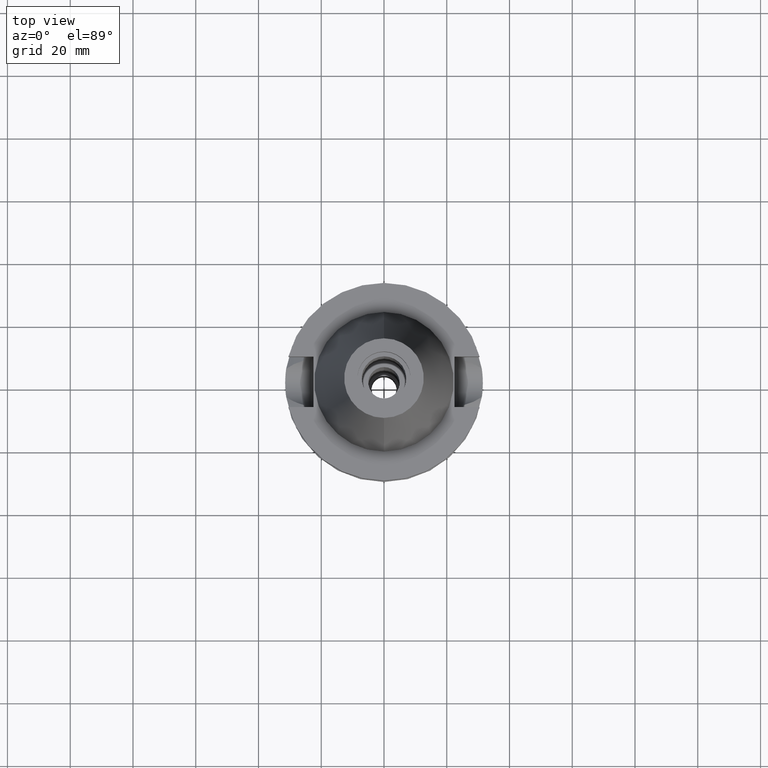
[diagram: clean part render]
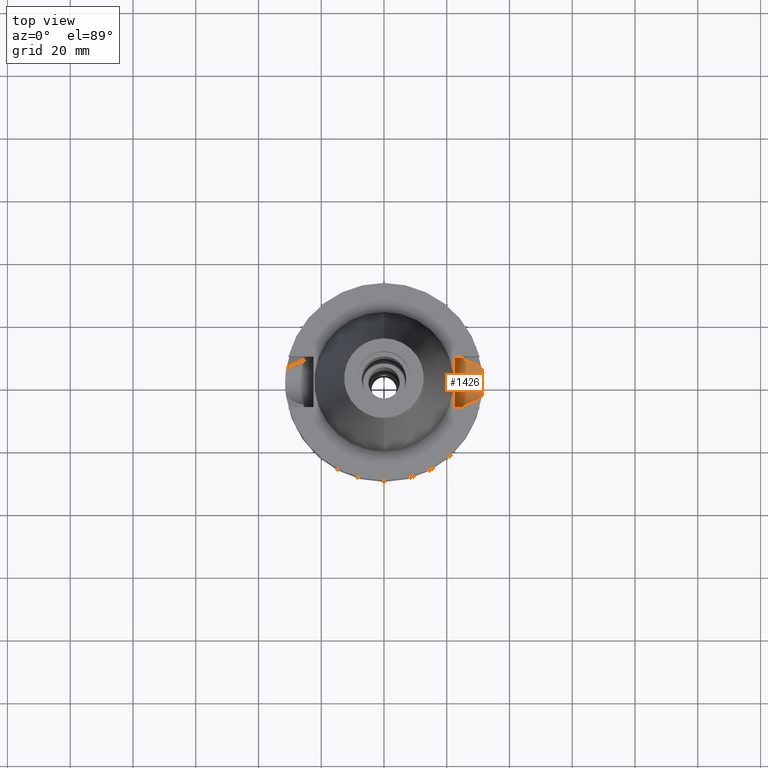
[diagram: same view with one face highlighted and labeled with its STEP entity id]
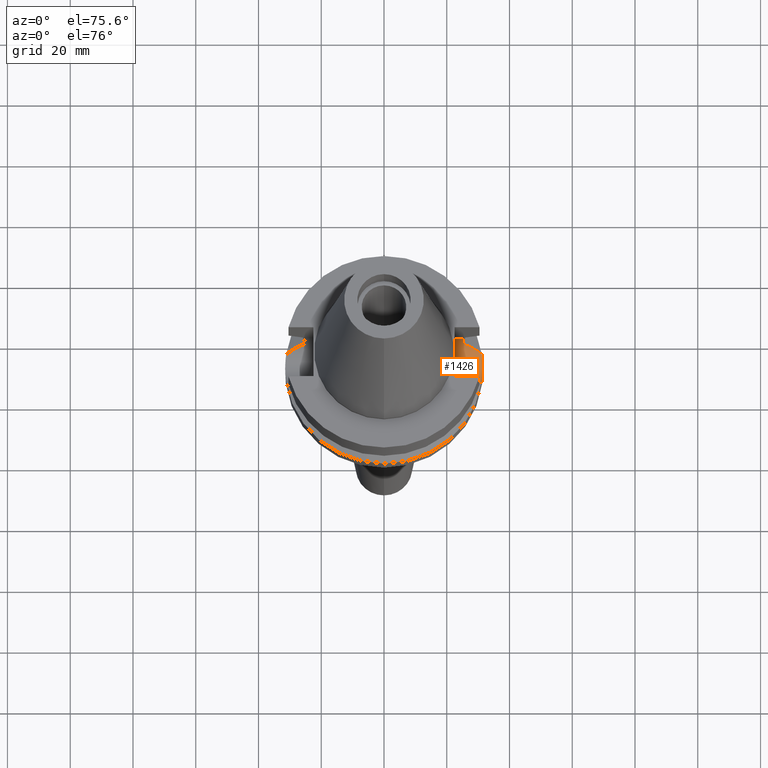
[diagram: same view with one face highlighted and labeled with its STEP entity id]
A machine part, top view. The second image highlights one B-rep face of the part: STEP entity #1426.
A second angle (auxiliary view) of the same face is appended — the face is thin or edge-on in the first view.
In plain terms, the highlighted cylindrical surface (edge-blend (fillet) strip) has radius 8.05 mm, axis along (1, 0, 0).
Its self-contained STEP definition (entity closure, byte-faithful):
#231=CARTESIAN_POINT('',(2.524772266958E1,-8.05E0,-1.495E1));
#232=CARTESIAN_POINT('',(2.524772266958E1,-8.05E0,-1.538861586984E1));
#233=CARTESIAN_POINT('',(2.527037418675E1,-7.979497389410E0,-1.625503182733E1));
#234=CARTESIAN_POINT('',(2.536988390551E1,-7.660352558554E0,-1.753923229568E1));
#235=CARTESIAN_POINT('',(2.547274343126E1,-7.310121622166E0,-1.835103685506E1));
#236=CARTESIAN_POINT('',(2.553175183775E1,-7.097862220093E0,-1.874774300139E1));
#314=CARTESIAN_POINT('',(2.25E1,0.E0,-1.495E1));
#315=DIRECTION('',(-1.E0,0.E0,0.E0));
#316=DIRECTION('',(0.E0,1.E0,0.E0));
#317=AXIS2_PLACEMENT_3D('',#314,#315,#316);
#322=CARTESIAN_POINT('',(2.25E1,0.E0,-1.495E1));
#323=DIRECTION('',(-1.E0,0.E0,0.E0));
#324=DIRECTION('',(0.E0,0.E0,-1.E0));
#325=AXIS2_PLACEMENT_3D('',#322,#323,#324);
#371=CARTESIAN_POINT('',(2.553175183775E1,7.097862220093E0,-1.874774300139E1));
#372=CARTESIAN_POINT('',(2.547273572370E1,7.310149347073E0,-1.835098503808E1));
#373=CARTESIAN_POINT('',(2.536986948417E1,7.660400052925E0,-1.753910233397E1));
#374=CARTESIAN_POINT('',(2.527036794818E1,7.979516786549E0,-1.625489344526E1));
#375=CARTESIAN_POINT('',(2.524772266958E1,8.05E0,-1.538855632562E1));
#376=CARTESIAN_POINT('',(2.524772266958E1,8.05E0,-1.495E1));
#484=CARTESIAN_POINT('',(2.553175183775E1,-7.097862220093E0,-1.874774300139E1));
#485=CARTESIAN_POINT('',(2.631980732396E1,-6.881239270811E0,-1.915260448021E1));
#486=CARTESIAN_POINT('',(2.779067636775E1,-6.386584007005E0,-1.990619770135E1));
#487=CARTESIAN_POINT('',(2.960214055152E1,-5.544969082454E0,-2.083127196154E1));
#488=CARTESIAN_POINT('',(3.068675739268E1,-4.858984339335E0,-2.138389723189E1));
#489=CARTESIAN_POINT('',(3.117899877609E1,-4.485536235554E0,-2.163449434733E1));
#510=DIRECTION('',(-1.E0,-1.551559937893E-14,0.E0));
#511=VECTOR('',#510,2.747722669580E0);
#512=CARTESIAN_POINT('',(2.524772266958E1,-8.05E0,-1.495E1));
#513=LINE('',#512,#511);
#517=DIRECTION('',(1.E0,-1.551559937893E-14,0.E0));
#518=VECTOR('',#517,2.747722669580E0);
#519=CARTESIAN_POINT('',(2.25E1,8.05E0,-1.495E1));
#520=LINE('',#519,#518);
#524=CARTESIAN_POINT('',(3.117899877609E1,-4.485536235554E0,-2.163449434733E1));
#525=CARTESIAN_POINT('',(3.124367220158E1,-4.035990730148E0,-2.193615555748E1));
#526=CARTESIAN_POINT('',(3.135871158456E1,-3.100629097605E0,-2.243541244985E1));
#527=CARTESIAN_POINT('',(3.147358573412E1,-1.571562217147E0,-2.289763062564E1));
#528=CARTESIAN_POINT('',(3.15E1,-5.304194873042E-1,-2.3E1));
#529=CARTESIAN_POINT('',(3.15E1,0.E0,-2.3E1));
#534=CARTESIAN_POINT('',(3.15E1,0.E0,-2.3E1));
#535=CARTESIAN_POINT('',(3.15E1,5.305046422127E-1,-2.3E1));
#536=CARTESIAN_POINT('',(3.147357697103E1,1.571759706118E0,-2.289759691925E1));
#537=CARTESIAN_POINT('',(3.135869289629E1,3.100801652067E0,-2.243533471996E1));
#538=CARTESIAN_POINT('',(3.124366261696E1,4.036057352874E0,-2.193611085123E1));
#539=CARTESIAN_POINT('',(3.117899877609E1,4.485536235554E0,-2.163449434733E1));
#577=CARTESIAN_POINT('',(3.117899877609E1,4.485536235554E0,-2.163449434733E1));
#578=CARTESIAN_POINT('',(3.064888040004E1,4.887720426051E0,-2.136461428369E1));
#579=CARTESIAN_POINT('',(2.950583609343E1,5.597413256007E0,-2.078215981258E1));
#580=CARTESIAN_POINT('',(2.770754358937E1,6.416907793647E0,-1.986365344815E1));
#581=CARTESIAN_POINT('',(2.628357690309E1,6.891198392675E0,-1.913399119468E1));
#582=CARTESIAN_POINT('',(2.553175183775E1,7.097862220093E0,-1.874774300139E1));
#968=VERTEX_POINT('',#534);
#969=VERTEX_POINT('',#539);
#970=VERTEX_POINT('',#524);
#975=VERTEX_POINT('',#484);
#976=VERTEX_POINT('',#231);
#977=CARTESIAN_POINT('',(2.25E1,-8.05E0,-1.495E1));
#978=VERTEX_POINT('',#977);
#979=CARTESIAN_POINT('',(2.25E1,0.E0,-2.3E1));
#980=VERTEX_POINT('',#979);
#981=CARTESIAN_POINT('',(2.25E1,8.05E0,-1.495E1));
#982=VERTEX_POINT('',#981);
#983=CARTESIAN_POINT('',(2.524772266958E1,8.05E0,-1.495E1));
#984=VERTEX_POINT('',#983);
#985=VERTEX_POINT('',#371);
#1406=CARTESIAN_POINT('',(2.25E1,0.E0,-1.495E1));
#1407=DIRECTION('',(1.E0,0.E0,0.E0));
#1408=DIRECTION('',(0.E0,0.E0,-1.E0));
#1409=AXIS2_PLACEMENT_3D('',#1406,#1407,#1408);
#1410=CYLINDRICAL_SURFACE('',#1409,8.05E0);
#1412=ORIENTED_EDGE('',*,*,#1411,.F.);
#1414=ORIENTED_EDGE('',*,*,#1413,.F.);
#1415=ORIENTED_EDGE('',*,*,#1397,.F.);
#1416=ORIENTED_EDGE('',*,*,#1206,.F.);
#1417=ORIENTED_EDGE('',*,*,#1260,.T.);
#1418=ORIENTED_EDGE('',*,*,#1275,.F.);
#1419=ORIENTED_EDGE('',*,*,#1273,.F.);
#1420=ORIENTED_EDGE('',*,*,#1288,.T.);
#1421=ORIENTED_EDGE('',*,*,#1312,.F.);
#1423=ORIENTED_EDGE('',*,*,#1422,.F.);
#1424=EDGE_LOOP('',(#1412,#1414,#1415,#1416,#1417,#1418,#1419,#1420,#1421,
#1423));
#1425=FACE_OUTER_BOUND('',#1424,.F.);
#237=B_SPLINE_CURVE_WITH_KNOTS('',3,(#231,#232,#233,#234,#235,#236),
.UNSPECIFIED.,.F.,.F.,(4,1,1,4),(0.E0,3.333333333333E-1,6.666666666667E-1,1.E0),
.UNSPECIFIED.);
#318=CIRCLE('',#317,8.05E0);
#326=CIRCLE('',#325,8.05E0);
#377=B_SPLINE_CURVE_WITH_KNOTS('',3,(#371,#372,#373,#374,#375,#376),
.UNSPECIFIED.,.F.,.F.,(4,1,1,4),(0.E0,3.333333333333E-1,6.666666666667E-1,1.E0),
.UNSPECIFIED.);
#490=B_SPLINE_CURVE_WITH_KNOTS('',3,(#484,#485,#486,#487,#488,#489),
.UNSPECIFIED.,.F.,.F.,(4,1,1,4),(0.E0,3.333333333333E-1,6.666666666667E-1,1.E0),
.UNSPECIFIED.);
#530=B_SPLINE_CURVE_WITH_KNOTS('',3,(#524,#525,#526,#527,#528,#529),
.UNSPECIFIED.,.F.,.F.,(4,1,1,4),(0.E0,3.333333333333E-1,6.666666666667E-1,1.E0),
.UNSPECIFIED.);
#540=B_SPLINE_CURVE_WITH_KNOTS('',3,(#534,#535,#536,#537,#538,#539),
.UNSPECIFIED.,.F.,.F.,(4,1,1,4),(0.E0,3.333333333333E-1,6.666666666667E-1,1.E0),
.UNSPECIFIED.);
#583=B_SPLINE_CURVE_WITH_KNOTS('',3,(#577,#578,#579,#580,#581,#582),
.UNSPECIFIED.,.F.,.F.,(4,1,1,4),(0.E0,3.333333333333E-1,6.666666666667E-1,1.E0),
.UNSPECIFIED.);
#1206=EDGE_CURVE('',#976,#975,#237,.T.);
#1260=EDGE_CURVE('',#976,#978,#513,.T.);
#1273=EDGE_CURVE('',#982,#980,#318,.T.);
#1275=EDGE_CURVE('',#980,#978,#326,.T.);
#1288=EDGE_CURVE('',#982,#984,#520,.T.);
#1312=EDGE_CURVE('',#985,#984,#377,.T.);
#1397=EDGE_CURVE('',#975,#970,#490,.T.);
#1411=EDGE_CURVE('',#968,#969,#540,.T.);
#1413=EDGE_CURVE('',#970,#968,#530,.T.);
#1422=EDGE_CURVE('',#969,#985,#583,.T.);
#1426=ADVANCED_FACE('',(#1425),#1410,.F.);